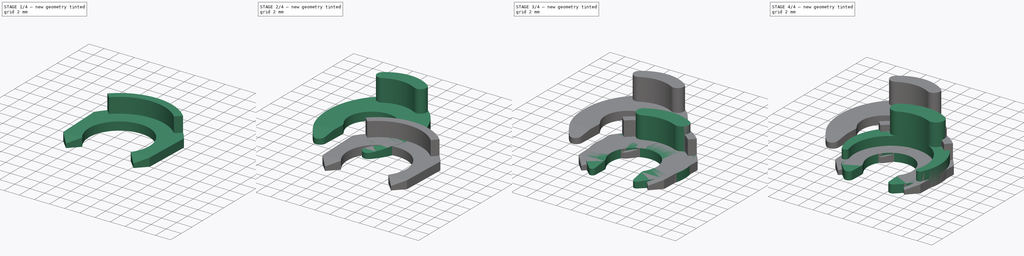
[diagram: build sequence overview — one tinted view per stage of 4, left to right]
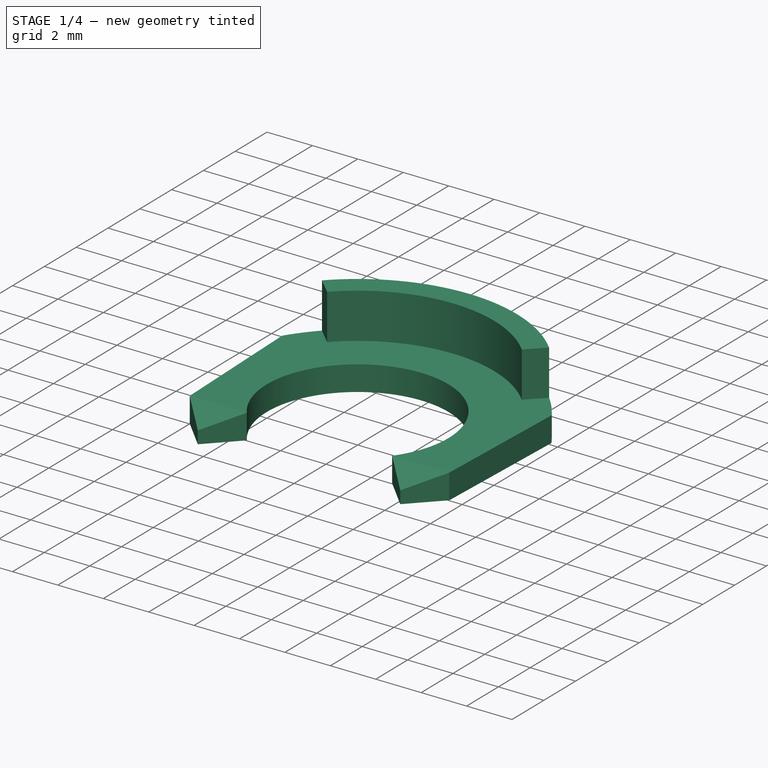
[diagram: stage 1 of 4 — iso view after this stage's code; geometry added in this stage tinted green]
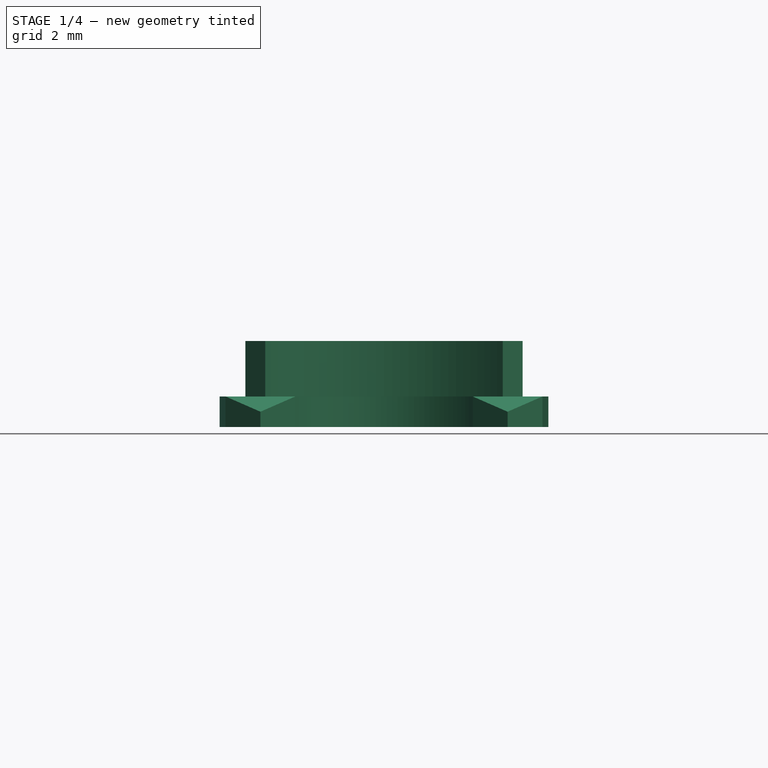
[diagram: stage 1 of 4 — front view after this stage's code; geometry added in this stage tinted green]
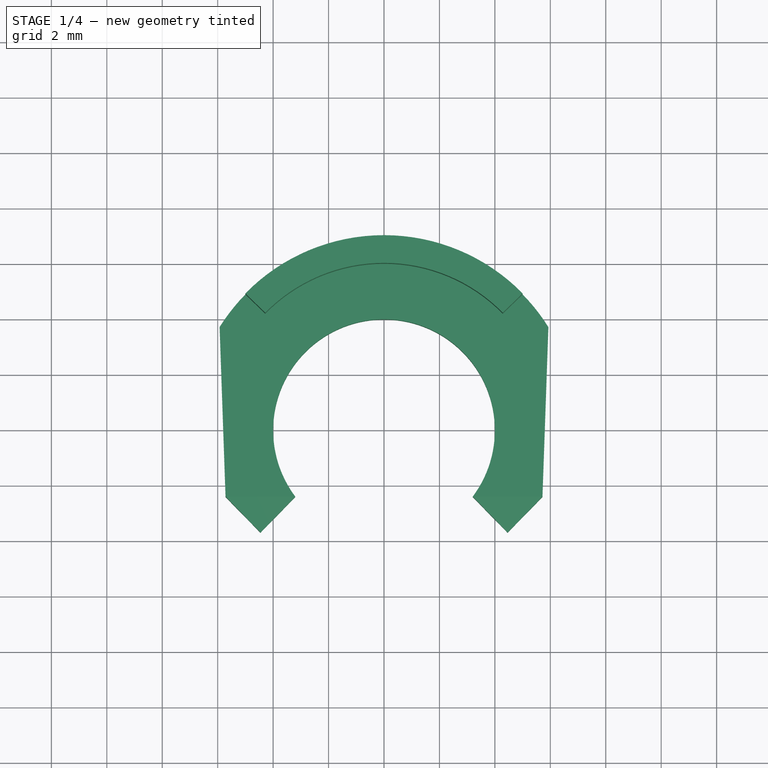
[diagram: stage 1 of 4 — top view after this stage's code; geometry added in this stage tinted green]
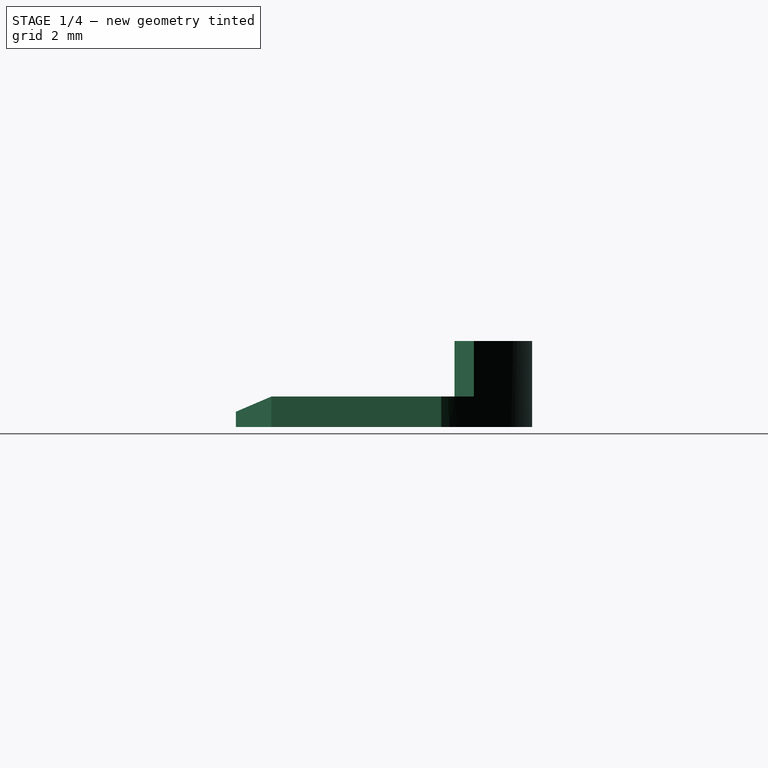
[diagram: stage 1 of 4 — right view after this stage's code; geometry added in this stage tinted green]
FCSTD DOCUMENT  (FreeCAD 0.20R29410 (Git))
Label: BowdenClip
License: All rights reserved
LicenseURL: http://en.wikipedia.org/wiki/All_rights_reserved
objects: Sketcher::SketchObject×16, PartDesign::Pad×9, PartDesign::Body×4, PartDesign::Pocket×3
note: 44 computed .brp shape members not serialized (recipe doc carries the construction recipe); baked Part::Feature solids carry a one-line shape summary decoded from their .brp

FEATURE [PartDesign::Body] Body002
  Group = -> [Sketch008,Sketch009,Pad005,Sketch010,Pad006,Sketch011,Pocket001]
  Origin = -> Origin002
  Tip = -> Pocket001
FEATURE [Sketcher::SketchObject] Sketch012
  FullyConstrained = true
  MapMode = 5
  Support = -> [XY_Plane003]
  expr: Constraints[15] = .Constraints.R + 3mm
  expr: Constraints[53] = .Constraints.R * 0.6
  sketch-geometry (20):
    g0: ArcOfCircle CenterX=2.74e-14 CenterY=-1.53e-14 CenterZ=0 NormalX=0 NormalY=0 NormalZ=1 AngleXU=0 Radius=4 StartAngle=5.63968 EndAngle=10.0683
    g1: LineSegment StartX=-3.2 StartY=-2.4 StartZ=0 EndX=2.75e-14 EndY=-1.55e-14 EndZ=0
    g2: LineSegment StartX=2.74e-14 StartY=-1.53e-14 StartZ=0 EndX=3.2 EndY=-2.4 EndZ=0
    g3: LineSegment StartX=2.74e-14 StartY=-1.53e-14 StartZ=0 EndX=2.74e-14 EndY=4 EndZ=0
    g4: LineSegment StartX=3.2 StartY=-2.4 StartZ=0 EndX=4.4581 EndY=-3.68732 EndZ=0
    g5: LineSegment StartX=-3.2 StartY=-2.4 StartZ=0 EndX=-4.4581 EndY=-3.68732 EndZ=0
    g6: LineSegment StartX=4.4581 StartY=-3.68732 StartZ=0 EndX=5.71619 EndY=-2.4 EndZ=0
    g7: LineSegment StartX=-4.4581 StartY=-3.68732 StartZ=0 EndX=-5.71619 EndY=-2.4 EndZ=0
    g8: ArcOfCircle CenterX=2.74e-14 CenterY=-1.53e-14 CenterZ=0 NormalX=0 NormalY=0 NormalZ=1 AngleXU=0 Radius=7 StartAngle=0.560239 EndAngle=2.58135
    g9: LineSegment StartX=-5.9299 StartY=3.71972 StartZ=0 EndX=-5.71619 EndY=-2.4 EndZ=0
    g10: LineSegment StartX=5.9299 StartY=3.71972 StartZ=0 EndX=5.71619 EndY=-2.4 EndZ=0
    g11: LineSegment StartX=-3.2 StartY=-2.4 StartZ=0 EndX=3.2 EndY=-2.4 EndZ=0
    g12: ArcOfCircle CenterX=2.74e-14 CenterY=-1.53e-14 CenterZ=0 NormalX=0 NormalY=0 NormalZ=1 AngleXU=0 Radius=6 StartAngle=0.775193 EndAngle=2.3664
    g13: LineSegment StartX=-4.28571 StartY=4.19913 StartZ=0 EndX=-5 EndY=4.89898 EndZ=0
    g14: LineSegment StartX=4.28571 StartY=4.19913 StartZ=0 EndX=5 EndY=4.89898 EndZ=0
    g15: LineSegment StartX=-4.28571 StartY=4.19913 StartZ=0 EndX=4.28571 EndY=4.19913 EndZ=0
    g16: LineSegment StartX=-4 StartY=-1.7e-14 StartZ=0 EndX=-5.8 EndY=-1.7e-14 EndZ=0
    g17: LineSegment StartX=-5.9299 StartY=3.71972 StartZ=0 EndX=5.9299 EndY=3.71972 EndZ=0
    g18: LineSegment StartX=-4.4581 StartY=-3.68732 StartZ=0 EndX=4.4581 EndY=-3.68732 EndZ=0
    g19: GeomPoint X=2.74e-14 Y=7 Z=0
  constraints (55):
    c: Radius(g0) = 4  'R'
    c: Coincident(g1,g0)
    c: Coincident(g1,g0)
    c: Coincident(g2,g0)
    c: Coincident(g2,g0)
    c: Coincident(g3,g0)
    c: PointOnObject(g3,g0)
    c: Vertical(g3)
    c: Coincident(g4,g0)
    c: Coincident(g5,g0)
    c: Coincident(g6,g4)
    c: Coincident(g7,g5)
    c: Equal(g5,g4)
    c: Distance(g5) = 1.8
    c: Coincident(g8,g0)
    c: Radius(g8) = 7
    c: Coincident(g9,g8)
    c: Coincident(g9,g7)
    c: Coincident(g10,g8)
    c: Coincident(g10,g6)
    c: Coincident(g11,g0)
    c: Coincident(g11,g0)
    c: Horizontal(g11)
    c: Coincident(g12,g0)
    c: Coincident(g13,g12)
    c: PointOnObject(g13,g8)
    c: Coincident(g14,g12)
    c: PointOnObject(g14,g8)
    c: PointOnObject(g0,g14)
    c: PointOnObject(g0,g13)
    c: Distance(g13) = 1
    c: Coincident(g15,g12)
    c: Coincident(g15,g12)
    c: Horizontal(g15)
    c: DistanceX(g13,g14) = 10
    c: PointOnObject(g16,g0)
    c: PointOnObject(g16,g9)
    c: Horizontal(g16)
    c: PointOnObject(g0,g16)
    c: Coincident(g0,g-1)
    c: Angle(g10,g9) = 0.0698132
    c: Coincident(g17,g8)
    c: Coincident(g17,g8)
    c: Horizontal(g17)
    c: Coincident(g18,g5)
    c: Coincident(g18,g4)
    c: Horizontal(g18)
    c: PointOnObject(g7,g11)
    c: PointOnObject(g6,g11)
    c: Equal(g10,g9)
    c: PointOnObject(g19,g8)
    c: PointOnObject(g19,g3)
    c: Equal(g16,g5)
    c: DistanceY(g0,g0) = 2.4
    c: Equal(g7,g5)
FEATURE [Sketcher::SketchObject] Sketch013
  ExternalGeometry = -> [Sketch012]
  FullyConstrained = true
  MapMode = 5
  Support = -> [XY_Plane003]
  sketch-geometry (8):
    g0: ArcOfCircle CenterX=9.2e-15 CenterY=9.99464e-11 CenterZ=0 NormalX=0 NormalY=0 NormalZ=1 AngleXU=0 Radius=7 StartAngle=0.560239 EndAngle=2.58135
    g1: ArcOfCircle CenterX=2.76e-14 CenterY=9.13716e-11 CenterZ=0 NormalX=0 NormalY=0 NormalZ=1 AngleXU=0 Radius=4 StartAngle=5.63968 EndAngle=10.0683
    g2: LineSegment StartX=-5.9299 StartY=3.71972 StartZ=0 EndX=-5.71619 EndY=-2.4 EndZ=0
    g3: LineSegment StartX=-5.71619 StartY=-2.4 StartZ=0 EndX=-4.4581 EndY=-3.68732 EndZ=0
    g4: LineSegment StartX=-4.4581 StartY=-3.68732 StartZ=0 EndX=-3.2 EndY=-2.4 EndZ=0
    g5: LineSegment StartX=3.2 StartY=-2.4 StartZ=0 EndX=4.4581 EndY=-3.68732 EndZ=0
    g6: LineSegment StartX=4.4581 StartY=-3.68732 StartZ=0 EndX=5.71619 EndY=-2.4 EndZ=0
    g7: LineSegment StartX=5.71619 StartY=-2.4 StartZ=0 EndX=5.9299 EndY=3.71972 EndZ=0
  constraints (18):
    c: Coincident(g0,g-3)
    c: Coincident(g0,g-3)
    c: Coincident(g1,g-4)
    c: Coincident(g1,g-4)
    c: Equal(g-4,g1)
    c: Equal(g-3,g0)
    c: Coincident(g2,g0)
    c: Coincident(g2,g-5)
    c: Coincident(g3,g2)
    c: Coincident(g3,g-5)
    c: Coincident(g4,g3)
    c: Coincident(g4,g1)
    c: Coincident(g5,g1)
    c: Coincident(g5,g-6)
    c: Coincident(g6,g5)
    c: Coincident(g6,g-6)
    c: Coincident(g7,g6)
    c: Coincident(g7,g0)
FEATURE [PartDesign::Pad] Pad007
  Direction = (0,0,1)
  Length = 1.1
  Length2 = 10
  Profile = -> Sketch013
  ReferenceAxis = -> Sketch013 [N_Axis]
  Type = 0
FEATURE [Sketcher::SketchObject] Sketch014
  AttachmentOffset = pos=(0,0,1.1) rot=(0,0,1;0rad)
  ExternalGeometry = -> [Sketch012]
  FullyConstrained = true
  MapMode = 5
  Placement = pos=(0,0,1.1) rot=(0,0,1;0rad)
  Support = -> [XY_Plane003]
  expr: .AttachmentOffset.Base.z = <<Sketch013>>.AttachmentOffset.Base.z + <<Pad007>>.Length
  sketch-geometry (4):
    g0: ArcOfCircle CenterX=7.4955e-12 CenterY=2.04442e-11 CenterZ=0 NormalX=0 NormalY=0 NormalZ=1 AngleXU=0 Radius=7 StartAngle=0.775193 EndAngle=2.3664
    g1: ArcOfCircle CenterX=-3.373e-12 CenterY=-9.9558e-12 CenterZ=0 NormalX=0 NormalY=0 NormalZ=1 AngleXU=0 Radius=6 StartAngle=0.775193 EndAngle=2.3664
    g2: LineSegment StartX=-5 StartY=4.89898 StartZ=0 EndX=-4.28571 EndY=4.19913 EndZ=0
    g3: LineSegment StartX=4.28571 StartY=4.19913 StartZ=0 EndX=5 EndY=4.89898 EndZ=0
  constraints (10):
    c: Coincident(g0,g-5)
    c: Coincident(g0,g-6)
    c: Coincident(g1,g-5)
    c: Coincident(g1,g-6)
    c: Equal(g-4,g1)
    c: Equal(g-3,g0)
    c: Coincident(g2,g0)
    c: Coincident(g2,g1)
    c: Coincident(g3,g1)
    c: Coincident(g3,g0)
FEATURE [PartDesign::Pad] Pad008
  BaseFeature = -> Pad007
  Direction = (0,0,1)
  Length = 2
  Length2 = 10
  Profile = -> Sketch014
  ReferenceAxis = -> Sketch014 [N_Axis]
  Refine = true
  Type = 0
FEATURE [Sketcher::SketchObject] Sketch015
  ExternalGeometry = -> [Sketch012]
  FullyConstrained = true
  MapMode = 5
  Placement = pos=(0,0,0) rot=(0.57735,0.57735,0.57735;2.0944rad)
  Support = -> [YZ_Plane003]
  expr: Constraints[4] = <<Pad007>>.Length
  sketch-geometry (5):
    g0: LineSegment StartX=-2.4 StartY=2e-16 StartZ=0 EndX=-2.4 EndY=1.1 EndZ=0
    g1: LineSegment StartX=-3.68732 StartY=2e-16 StartZ=0 EndX=-3.68732 EndY=0.55 EndZ=0
    g2: LineSegment StartX=-2.4 StartY=1.1 StartZ=0 EndX=-3.68732 EndY=1.1 EndZ=0
    g3: LineSegment StartX=-3.68732 StartY=1.1 StartZ=0 EndX=-3.68732 EndY=0.55 EndZ=0
    g4: LineSegment StartX=-3.68732 StartY=0.55 StartZ=0 EndX=-2.4 EndY=1.1 EndZ=0
  constraints (13):
    c: Coincident(g0,g-3)
    c: Vertical(g0)
    c: Coincident(g1,g-3)
    c: Vertical(g1)
    c: DistanceY(g0,g0) = 1.1
    c: Coincident(g2,g0)
    c: Horizontal(g2)
    c: Coincident(g3,g2)
    c: Coincident(g3,g1)
    c: Vertical(g3)
    c: Coincident(g4,g3)
    c: Coincident(g4,g2)
    c: Equal(g3,g1)
FEATURE [PartDesign::Pocket] Pocket002
  BaseFeature = -> Pad008
  Direction = (-1,2e-16,-3e-16)
  Length = 5
  Length2 = 5
  Midplane = true
  Profile = -> Sketch015
  ReferenceAxis = -> Sketch015 [N_Axis]
  Type = 1
FEATURE [PartDesign::Body] Body003
  Group = -> [Sketch012,Sketch013,Pad007,Sketch014,Pad008,Sketch015,Pocket002]
  Origin = -> Origin003
  Tip = -> Pocket002
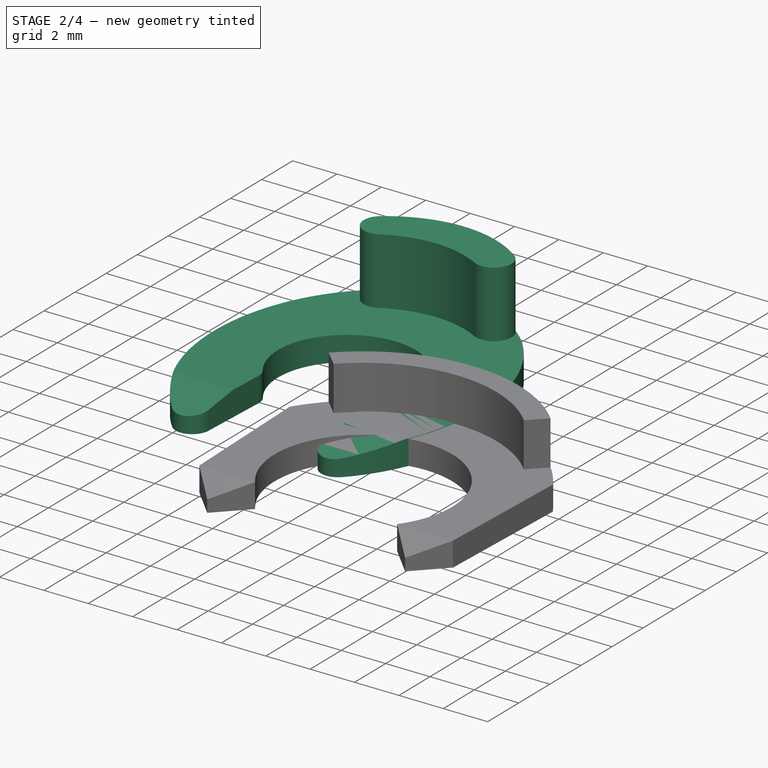
[diagram: stage 2 of 4 — iso view after this stage's code; geometry added in this stage tinted green]
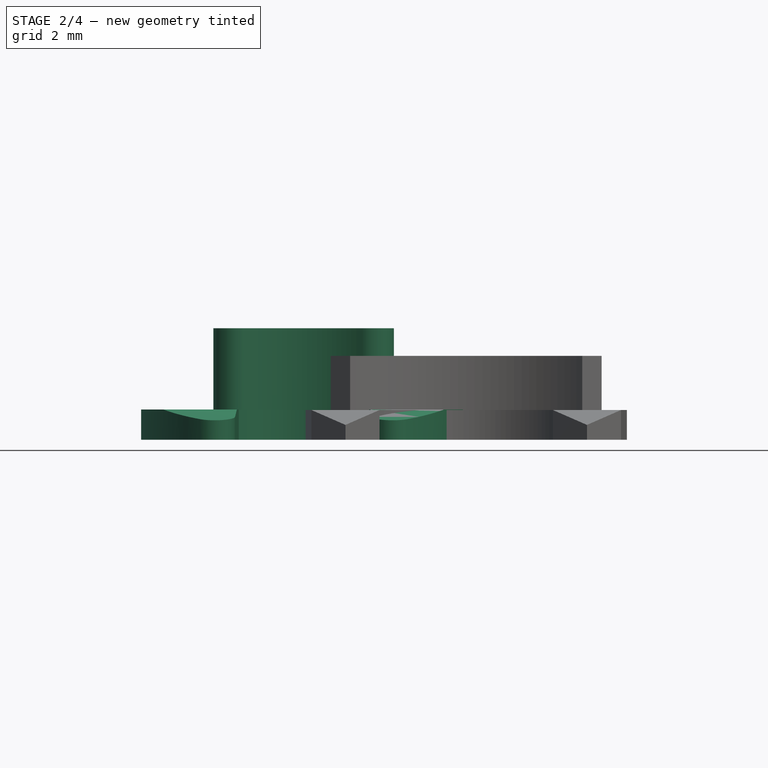
[diagram: stage 2 of 4 — front view after this stage's code; geometry added in this stage tinted green]
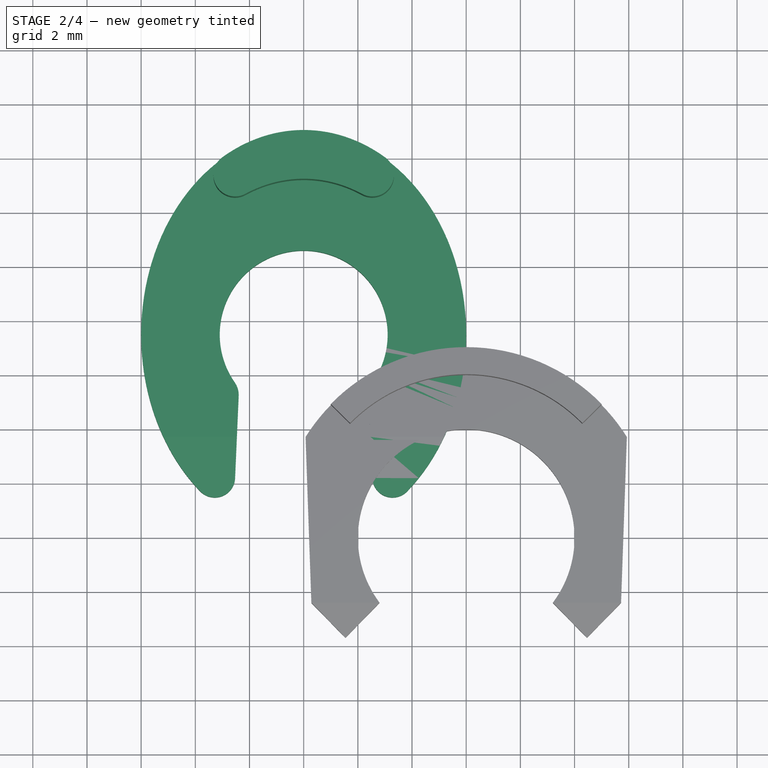
[diagram: stage 2 of 4 — top view after this stage's code; geometry added in this stage tinted green]
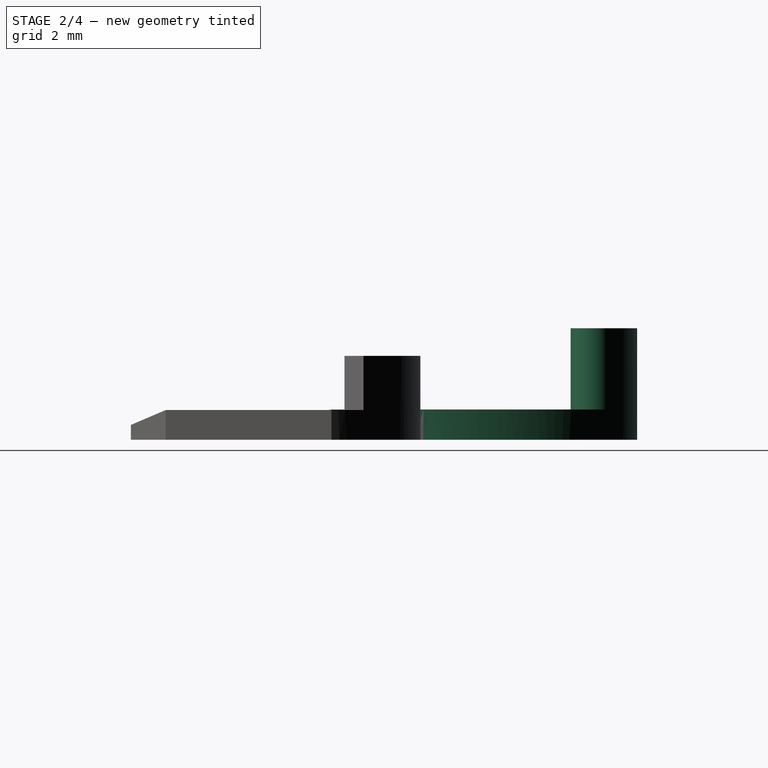
[diagram: stage 2 of 4 — right view after this stage's code; geometry added in this stage tinted green]
FEATURE [PartDesign::Body] Body001
  Group = -> [Sketch004,Pad003,Sketch005,Sketch006,Pad004,Sketch007,Pocket]
  Origin = -> Origin001
  Tip = -> Pocket
FEATURE [Sketcher::SketchObject] Sketch008  label="Template002"
  FullyConstrained = true
  MapMode = 5
  Support = -> [XY_Plane002]
  sketch-geometry (18):
    g0: ArcOfCircle CenterX=-6 CenterY=7.5 CenterZ=0 NormalX=0 NormalY=0 NormalZ=1 AngleXU=0 Radius=3.1 StartAngle=5.67436 EndAngle=10.0336
    g1: ArcOfCircle CenterX=-9.19924 CenterY=5.26956 CenterZ=0 NormalX=0 NormalY=0 NormalZ=1 AngleXU=0 Radius=0.8 StartAngle=6.23955 EndAngle=6.89202
    g2: ArcOfCircle CenterX=-2.80076 CenterY=5.26956 CenterZ=0 NormalX=0 NormalY=0 NormalZ=1 AngleXU=0 Radius=0.8 StartAngle=2.53276 EndAngle=3.18523
    g3: LineSegment StartX=-6 StartY=7.5 StartZ=0 EndX=-6 EndY=10.6 EndZ=0
    g4: LineSegment StartX=-8.4 StartY=5.23466 StartZ=0 EndX=-8.53224 EndY=2.2058 EndZ=0
    g5: LineSegment StartX=-3.6 StartY=5.23466 StartZ=0 EndX=-3.46776 EndY=2.2058 EndZ=0
    g6: Ellipse CenterX=-6 CenterY=7.5 CenterZ=0 NormalX=0 NormalY=0 NormalZ=1 MajorRadius=7.5 MinorRadius=6 AngleXU=-1.5708
    g7: LineSegment StartX=-6 StartY=2.7e-15 StartZ=0 EndX=-6 EndY=15 EndZ=0
    g8: LineSegment StartX=1e-15 StartY=7.5 StartZ=0 EndX=-12 EndY=7.5 EndZ=0
    g9: GeomPoint X=-6 Y=3 Z=0
    g10: GeomPoint X=-6 Y=12 Z=0
    g11: ArcOfEllipse CenterX=-6 CenterY=7.5 CenterZ=0 NormalX=0 NormalY=0 NormalZ=1 MajorRadius=7.5 MinorRadius=6 AngleXU=1.5708 StartAngle=3.8318 EndAngle=8.73457
    g12: LineSegment StartX=-6 StartY=15 StartZ=0 EndX=-6 EndY=7.1e-15 EndZ=0
    g13: LineSegment StartX=-12 StartY=7.5 StartZ=0 EndX=-7.1e-15 EndY=7.5 EndZ=0
    g14: GeomPoint X=-6 Y=12 Z=0
    g15: GeomPoint X=-6 Y=3 Z=0
    g16: ArcOfCircle CenterX=-9.28153 CenterY=2.23852 CenterZ=0 NormalX=0 NormalY=0 NormalZ=1 AngleXU=0 Radius=0.75 StartAngle=3.9112 EndAngle=6.23955
    g17: ArcOfCircle CenterX=-2.71847 CenterY=2.23852 CenterZ=0 NormalX=0 NormalY=0 NormalZ=1 AngleXU=0 Radius=0.75 StartAngle=3.18523 EndAngle=5.51358
  constraints (30):
    c: Tangent(g0,g1) = 1.5708
    c: Tangent(g0,g2) = 1.5708
    c: Coincident(g3,g0)
    c: PointOnObject(g3,g0)
    c: Vertical(g3)
    c: Symmetric(g1,g2,g3)
    c: Tangent(g1,g4) = 1.5708
    c: Tangent(g2,g5) = -1.5708
    c: Equal(g4,g5)
    c: Angle(g4,g5) = 0.0872665
    c: Radius(g1) = 0.8
    c: Radius(g0) = 3.1  'R'
    c: InternalAlignment(g7-g10 -> g6) x4
    c: Vertical(g7)
    c: DistanceX(g8,g8) = 12
    c: DistanceY(g7,g7) = 15
    c: InternalAlignment(g12-g15 -> g11) x4
    c: Coincident(g11,g6)
    c: Symmetric(g11,g11,g7)
    c: Coincident(g11,g0)
    c: Tangent(g4,g16) = 1.5708
    c: Tangent(g11,g16) = -1.5708
    c: Tangent(g11,g17) = -1.5708
    c: Tangent(g5,g17) = -1.5708
    c: Radius(g16) = 0.75
    c: PointOnObject(g13,g6)
    c: PointOnObject(g12,g6)
    c: Tangent(g6,g-1)
    c: Tangent(g6,g-2)
    c: DistanceX(g1,g2) = 4.8
FEATURE [Sketcher::SketchObject] Sketch009
  ExternalGeometry = -> [Sketch008]
  FullyConstrained = true
  MapMode = 5
  Support = -> [XY_Plane002]
  sketch-geometry (13):
    g0: ArcOfEllipse CenterX=-6 CenterY=7.5 CenterZ=0 NormalX=0 NormalY=0 NormalZ=1 MajorRadius=7.5 MinorRadius=6 AngleXU=1.5708 StartAngle=3.8318 EndAngle=8.73457
    g1: LineSegment StartX=-6 StartY=15 StartZ=0 EndX=-6 EndY=2.0677e-12 EndZ=0
    g2: LineSegment StartX=-12 StartY=7.5 StartZ=0 EndX=1.2719e-12 EndY=7.5 EndZ=0
    g3: GeomPoint X=-6 Y=12 Z=0
    g4: GeomPoint X=-6 Y=3 Z=0
    g5: GeomPoint X=-0.850205 Y=3.65138 Z=0
    g6: ArcOfCircle CenterX=-9.28153 CenterY=2.23852 CenterZ=0 NormalX=0 NormalY=0 NormalZ=1 AngleXU=0 Radius=0.75 StartAngle=3.9112 EndAngle=6.23955
    g7: ArcOfCircle CenterX=-2.71847 CenterY=2.23852 CenterZ=0 NormalX=0 NormalY=0 NormalZ=1 AngleXU=0 Radius=0.75 StartAngle=3.18523 EndAngle=5.51358
    g8: ArcOfCircle CenterX=-9.19924 CenterY=5.26956 CenterZ=0 NormalX=0 NormalY=0 NormalZ=1 AngleXU=0 Radius=0.8 StartAngle=6.23955 EndAngle=6.89202
    g9: ArcOfCircle CenterX=-2.80076 CenterY=5.26956 CenterZ=0 NormalX=0 NormalY=0 NormalZ=1 AngleXU=0 Radius=0.8 StartAngle=2.53276 EndAngle=3.18523
    g10: ArcOfCircle CenterX=-6 CenterY=7.5 CenterZ=0 NormalX=0 NormalY=0 NormalZ=1 AngleXU=0 Radius=3.1 StartAngle=5.67436 EndAngle=10.0336
    g11: LineSegment StartX=-8.53224 StartY=2.2058 StartZ=0 EndX=-8.4 EndY=5.23466 EndZ=0
    g12: LineSegment StartX=-3.6 StartY=5.23466 StartZ=0 EndX=-3.46776 EndY=2.2058 EndZ=0
  constraints (26):
    c: InternalAlignment(g1-g4 -> g0) x4
    c: Coincident(g0,g-6)
    c: PointOnObject(g5,g-3)
    c: PointOnObject(g5,g0)
    c: Tangent(g-3,g0,g5) = -1.5708
    c: Coincident(g0,g-4)
    c: Coincident(g0,g-5)
    c: Coincident(g6,g0)
    c: Coincident(g6,g-4)
    c: Coincident(g7,g-5)
    c: Coincident(g7,g0)
    c: Coincident(g8,g-7)
    c: Coincident(g8,g-7)
    c: Coincident(g9,g-8)
    c: Coincident(g9,g-8)
    c: Coincident(g10,g8)
    c: Coincident(g10,g9)
    c: Equal(g-6,g10)
    c: Equal(g-7,g8)
    c: Equal(g-8,g9)
    c: Equal(g-5,g7)
    c: Equal(g-4,g6)
    c: Coincident(g11,g6)
    c: Coincident(g11,g8)
    c: Coincident(g12,g9)
    c: Coincident(g12,g7)
FEATURE [Sketcher::SketchObject] Sketch010
  AttachmentOffset = pos=(0,0,1.12) rot=(0,0,1;0rad)
  ExternalGeometry = -> [Sketch008]
  FullyConstrained = true
  MapMode = 5
  Placement = pos=(0,0,1.12) rot=(0,0,1;0rad)
  Support = -> [XY_Plane002]
  expr: .AttachmentOffset.Base.z = <<Sketch009>>.AttachmentOffset.Base.z + <<Pad005>>.Length
  sketch-geometry (13):
    g0: ArcOfEllipse CenterX=-6 CenterY=7.5 CenterZ=0 NormalX=0 NormalY=0 NormalZ=1 MajorRadius=7.5 MinorRadius=6 AngleXU=1.5708 StartAngle=5.75959 EndAngle=6.80678
    g1: LineSegment StartX=-6 StartY=15 StartZ=0 EndX=-6 EndY=-1.403e-13 EndZ=0
    g2: LineSegment StartX=-12 StartY=7.5 StartZ=0 EndX=1.45093e-11 EndY=7.5 EndZ=0
    g3: GeomPoint X=-6 Y=12 Z=0
    g4: GeomPoint X=-6 Y=3 Z=0
    g5: LineSegment StartX=-9 StartY=13.9952 StartZ=0 EndX=-3 EndY=13.9952 EndZ=0
    g6: ArcOfEllipse CenterX=-6 CenterY=7.5 CenterZ=0 NormalX=0 NormalY=0 NormalZ=1 MajorRadius=5.7 MinorRadius=4.98874 AngleXU=1.5708 StartAngle=5.83788 EndAngle=6.72849
    g7: LineSegment StartX=-6 StartY=13.2 StartZ=0 EndX=-6 EndY=1.8 EndZ=0
    g8: LineSegment StartX=-10.9887 StartY=7.5 StartZ=0 EndX=-1.01126 EndY=7.5 EndZ=0
    g9: GeomPoint X=-6 Y=10.2573 Z=0
    g10: GeomPoint X=-6 Y=4.74274 Z=0
    g11: ArcOfCircle CenterX=-8.53184 CenterY=13.3465 CenterZ=0 NormalX=0 NormalY=0 NormalZ=1 AngleXU=0 Radius=0.8 StartAngle=2.19593 EndAngle=5.21164
    g12: ArcOfCircle CenterX=-3.46816 CenterY=13.3465 CenterZ=0 NormalX=0 NormalY=0 NormalZ=1 AngleXU=0 Radius=0.8 StartAngle=4.21314 EndAngle=7.22885
  constraints (18):
    c: InternalAlignment(g1-g4 -> g0) x4
    c: Coincident(g0,g-3)
    c: PointOnObject(g0,g-3)
    c: Coincident(g5,g0)
    c: Coincident(g5,g0)
    c: Horizontal(g5)
    c: InternalAlignment(g7-g10 -> g6) x4
    c: Coincident(g6,g0)
    c: Tangent(g6,g12) = 1.5708
    c: Tangent(g6,g11) = 1.5708
    c: Tangent(g11,g0) = -1.5708
    c: Tangent(g12,g0) = -1.5708
    c: Equal(g12,g11)
    c: Radius(g11) = 0.8
    c: Vertical(g1)
    c: PointOnObject(g1,g-3)
    c: DistanceY(g7,g1) = 1.8
    c: DistanceX(g0,g0) = 6
FEATURE [PartDesign::Pad] Pad005
  Direction = (0,0,1)
  Length = 1.12
  Length2 = 10
  Profile = -> Sketch009
  ReferenceAxis = -> Sketch009 [N_Axis]
  Type = 0
FEATURE [PartDesign::Pad] Pad006
  BaseFeature = -> Pad005
  Direction = (0,0,1)
  Length = 3
  Length2 = 10
  Profile = -> Sketch010
  ReferenceAxis = -> Sketch010 [N_Axis]
  Refine = true
  Type = 0
FEATURE [Sketcher::SketchObject] Sketch011
  ExternalGeometry = -> [Sketch008]
  FullyConstrained = true
  MapMode = 5
  Placement = pos=(0,0,0) rot=(0.57735,0.57735,0.57735;2.0944rad)
  Support = -> [YZ_Plane002]
  expr: Constraints[4] = <<Pad005>>.Length
  sketch-geometry (5):
    g0: LineSegment StartX=3.72023 StartY=3.4e-15 StartZ=0 EndX=3.72023 EndY=1.12 EndZ=0
    g1: LineSegment StartX=1.48852 StartY=-9.71e-14 StartZ=0 EndX=1.48852 EndY=0.72 EndZ=0
    g2: LineSegment StartX=3.72023 StartY=1.12 StartZ=0 EndX=1.48852 EndY=1.12 EndZ=0
    g3: LineSegment StartX=1.48852 StartY=1.12 StartZ=0 EndX=1.48852 EndY=0.72 EndZ=0
    g4: LineSegment StartX=1.48852 StartY=0.72 StartZ=0 EndX=3.72023 EndY=1.12 EndZ=0
  constraints (13):
    c: Vertical(g0)
    c: Coincident(g1,g-3)
    c: Vertical(g1)
    c: Symmetric(g-4,g-4,g0)
    c: DistanceY(g0,g0) = 1.12
    c: Coincident(g2,g0)
    c: Horizontal(g2)
    c: Coincident(g3,g2)
    c: Coincident(g3,g1)
    c: Vertical(g3)
    c: Coincident(g4,g3)
    c: Coincident(g4,g2)
    c: DistanceY(g3,g3) = 0.4
FEATURE [PartDesign::Pocket] Pocket001
  BaseFeature = -> Pad006
  Direction = (-1,2e-16,-3e-16)
  Length = 5
  Length2 = 5
  Midplane = true
  Profile = -> Sketch011
  ReferenceAxis = -> Sketch011 [N_Axis]
  Type = 1
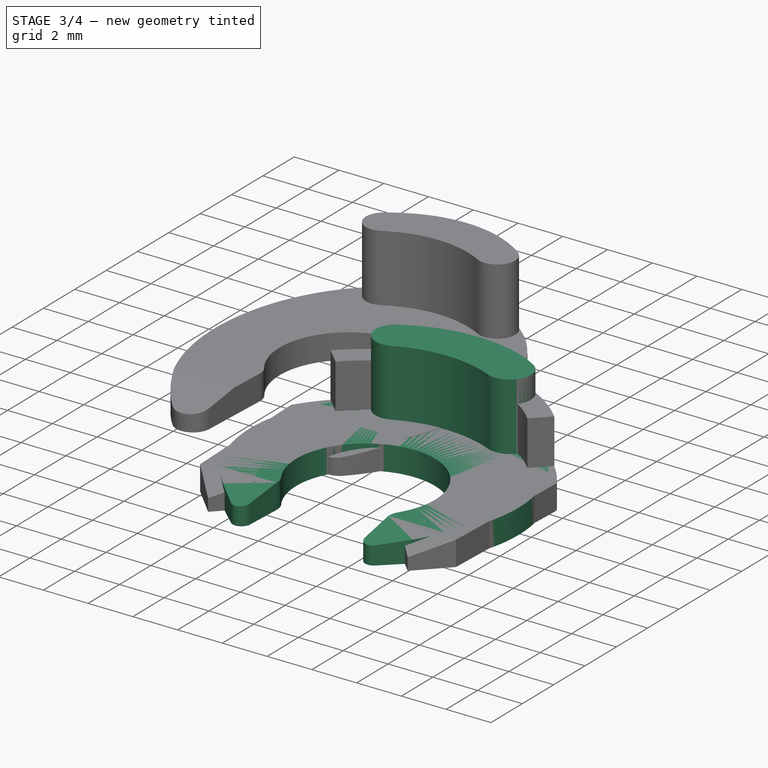
[diagram: stage 3 of 4 — iso view after this stage's code; geometry added in this stage tinted green]
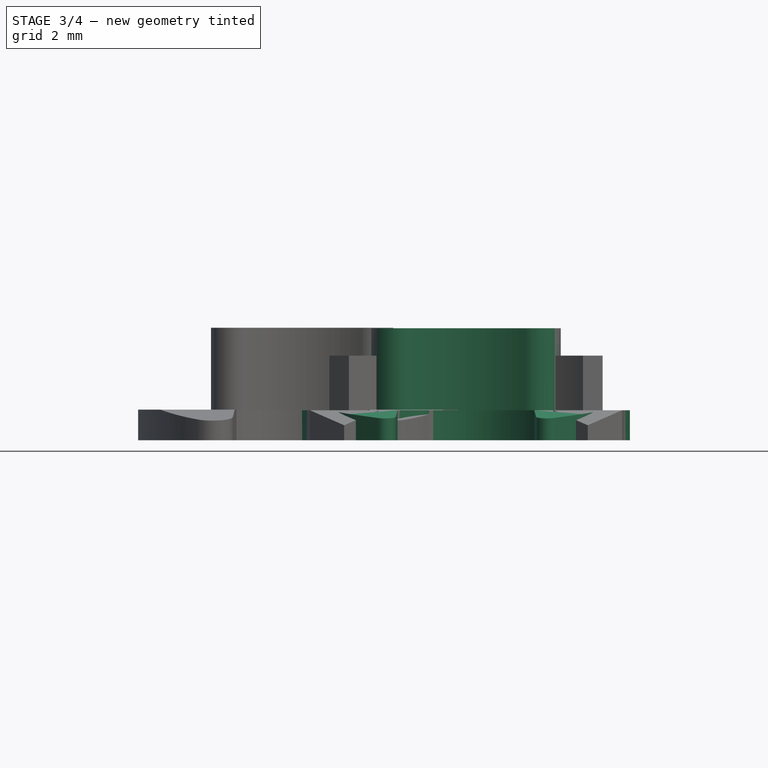
[diagram: stage 3 of 4 — front view after this stage's code; geometry added in this stage tinted green]
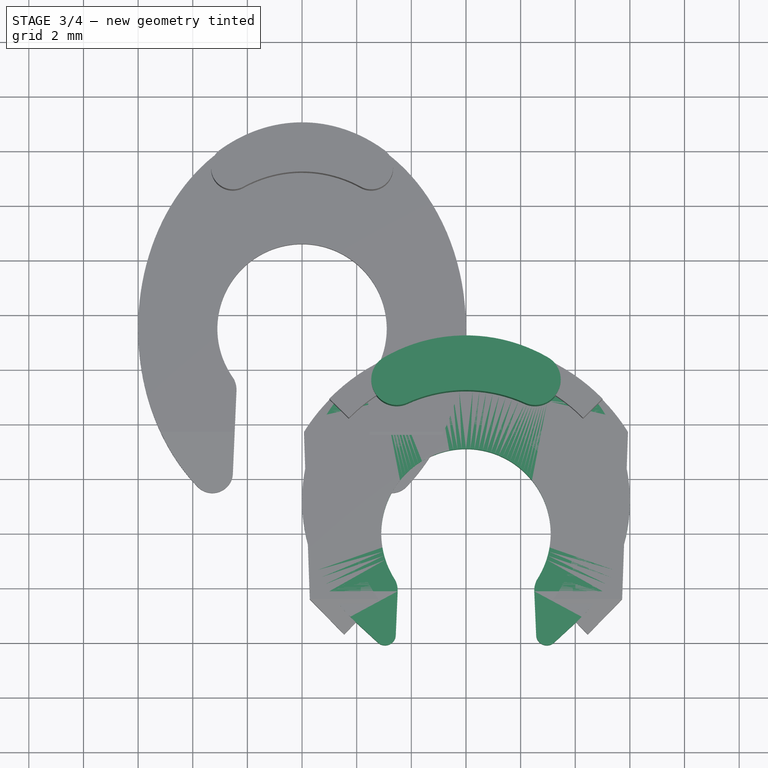
[diagram: stage 3 of 4 — top view after this stage's code; geometry added in this stage tinted green]
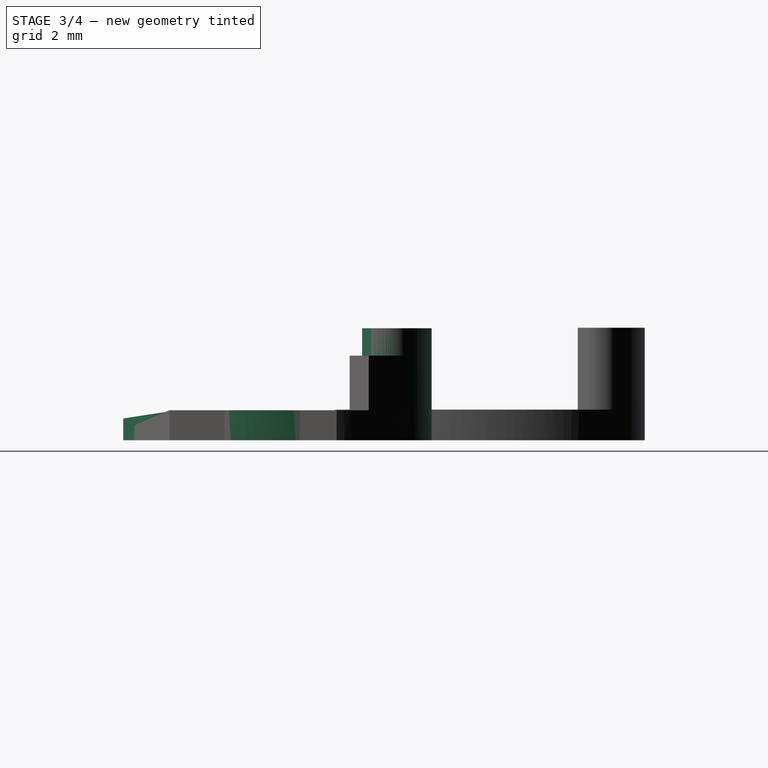
[diagram: stage 3 of 4 — right view after this stage's code; geometry added in this stage tinted green]
FEATURE [PartDesign::Body] Body
  Group = -> [Sketch,Sketch001,Pad,Sketch002,Pad001,Sketch003,Pad002]
  Origin = -> Origin
  Tip = -> Pad002
FEATURE [Sketcher::SketchObject] Sketch004  label="Template001"
  FullyConstrained = true
  MapMode = 5
  Support = -> [XY_Plane001]
  sketch-geometry (22):
    g0: ArcOfCircle CenterX=-2.638e-13 CenterY=-3.528e-12 CenterZ=0 NormalX=0 NormalY=0 NormalZ=1 AngleXU=0 Radius=3.1 StartAngle=5.72075 EndAngle=9.98721
    g1: ArcOfCircle CenterX=-3.29924 CenterY=-2.07967 CenterZ=0 NormalX=0 NormalY=0 NormalZ=1 AngleXU=0 Radius=0.8 StartAngle=6.23955 EndAngle=6.84562
    g2: ArcOfCircle CenterX=3.29924 CenterY=-2.07967 CenterZ=0 NormalX=0 NormalY=0 NormalZ=1 AngleXU=0 Radius=0.8 StartAngle=2.57916 EndAngle=3.18523
    g3: LineSegment StartX=-2.62247 StartY=-1.65307 StartZ=0 EndX=2.62247 EndY=-1.65307 EndZ=0
    g4: LineSegment StartX=-2.5 StartY=-2.11456 StartZ=0 EndX=-2.56986 EndY=-3.71456 EndZ=0
    g5: LineSegment StartX=2.5 StartY=-2.11456 StartZ=0 EndX=2.56986 EndY=-3.71456 EndZ=0
    g6: LineSegment StartX=-2.56986 StartY=-3.71456 StartZ=0 EndX=2.56986 EndY=-3.71456 EndZ=0
    g7: LineSegment StartX=-2.5 StartY=-2.11456 StartZ=0 EndX=2.5 EndY=-2.11456 EndZ=0
    g8: LineSegment StartX=-2.5 StartY=-2.11456 StartZ=0 EndX=-2.638e-13 EndY=-3.5278e-12 EndZ=0
    g9: LineSegment StartX=-2.638e-13 StartY=-3.528e-12 StartZ=0 EndX=2.5 EndY=-2.11456 EndZ=0
    g10: ArcOfCircle CenterX=-2.638e-13 CenterY=1.2 CenterZ=0 NormalX=0 NormalY=0 NormalZ=1 AngleXU=0 Radius=6 StartAngle=5.4564 EndAngle=10.2516
    g11: LineSegment StartX=-2.638e-13 StartY=-3.528e-12 StartZ=0 EndX=-2.638e-13 EndY=1.2 EndZ=0
    g12: LineSegment StartX=-4.06345 StartY=-3.21456 StartZ=0 EndX=-3.22594 EndY=-3.98546 EndZ=0
    g13: LineSegment StartX=4.06345 StartY=-3.21456 StartZ=0 EndX=3.22594 EndY=-3.98546 EndZ=0
    g14: LineSegment StartX=-4.06345 StartY=-3.21456 StartZ=0 EndX=4.06345 EndY=-3.21456 EndZ=0
    g15: ArcOfCircle CenterX=-2.96087 CenterY=-3.69749 CenterZ=0 NormalX=0 NormalY=0 NormalZ=1 AngleXU=0 Radius=0.39139 StartAngle=3.96838 EndAngle=6.23955
    g16: ArcOfCircle CenterX=2.96087 CenterY=-3.69749 CenterZ=0 NormalX=0 NormalY=0 NormalZ=1 AngleXU=0 Radius=0.39139 StartAngle=3.18523 EndAngle=5.4564
    g17: ArcOfCircle CenterX=-2.638e-13 CenterY=-3.528e-12 CenterZ=0 NormalX=0 NormalY=0 NormalZ=1 AngleXU=0 Radius=5.2 StartAngle=1.14516 EndAngle=1.99643
    g18: ArcOfCircle CenterX=-2.53284 CenterY=5.58701 CenterZ=0 NormalX=0 NormalY=0 NormalZ=1 AngleXU=0 Radius=0.934322 StartAngle=2.0944 EndAngle=5.13802
    g19: ArcOfCircle CenterX=2.53284 CenterY=5.58701 CenterZ=0 NormalX=0 NormalY=0 NormalZ=1 AngleXU=0 Radius=0.934322 StartAngle=4.28676 EndAngle=7.33038
    g20: LineSegment StartX=-2.14706 StartY=4.73605 StartZ=0 EndX=2.14706 EndY=4.73605 EndZ=0
    g21: LineSegment StartX=-2.653e-13 StartY=5.2 StartZ=0 EndX=-2.653e-13 EndY=7.2 EndZ=0
  constraints (54):
    c: Radius(g0) = 3.1  'R'
    c: Tangent(g1,g0) = 1.5708
    c: Tangent(g2,g0) = 1.5708
    c: Coincident(g3,g0)
    c: Coincident(g3,g0)
    c: Horizontal(g3)
    c: Equal(g1,g2)
    c: Tangent(g2,g5) = -1.5708
    c: Coincident(g6,g4)
    c: Coincident(g6,g5)
    c: Horizontal(g6)
    c: Coincident(g7,g1)
    c: Coincident(g7,g2)
    c: Horizontal(g7)
    c: Angle(g4,g5) = 0.0872665
    c: Coincident(g8,g1)
    c: Coincident(g8,g0)
    c: Coincident(g9,g0)
    c: Coincident(g9,g2)
    c: DistanceY(g4,g1) = 1.6
    c: DistanceX(g7,g7) = 5
    c: Radius(g10) = 6
    c: Coincident(g11,g0)
    c: Coincident(g11,g10)
    c: Vertical(g11)
    c: DistanceY(g11,g11) = 1.2
    c: Radius(g1) = 0.8
    c: Tangent(g10,g13) = 1.5708
    c: Tangent(g10,g12) = -1.5708
    c: Coincident(g14,g10)
    c: Coincident(g14,g10)
    c: Horizontal(g14)
    c: Equal(g13,g12)
    c: Tangent(g1,g4) = 1.5708
    c: DistanceY(g4,g10) = 0.5
    c: Tangent(g5,g16) = -1.5708
    c: Tangent(g16,g13) = 1.5708
    c: Tangent(g4,g15) = 1.5708
    c: Coincident(g15,g12)
    c: Coincident(g0,g-1)  '__ANCHOR__'
    c: Coincident(g0,g17)
    c: Tangent(g18,g10) = -1.5708
    c: Tangent(g19,g10) = -1.5708
    c: Coincident(g20,g18)
    c: Coincident(g20,g19)
    c: Horizontal(g20)
    c: DistanceX(g18,g19) = 6
    c: Tangent(g17,g18) = 1.5708
    c: Tangent(g17,g19) = 1.5708
    c: PointOnObject(g21,g17)
    c: PointOnObject(g21,g10)
    c: Vertical(g21)
    c: PointOnObject(g21,g11)
    c: DistanceY(g21,g21) = 2
FEATURE [Sketcher::SketchObject] Sketch005
  ExternalGeometry = -> [Sketch004]
  FullyConstrained = true
  MapMode = 5
  Support = -> [XY_Plane001]
  sketch-geometry (10):
    g0: ArcOfCircle CenterX=-2.96087 CenterY=-3.69749 CenterZ=0 NormalX=0 NormalY=0 NormalZ=1 AngleXU=0 Radius=0.39139 StartAngle=3.96838 EndAngle=6.23955
    g1: ArcOfCircle CenterX=2.96087 CenterY=-3.69749 CenterZ=0 NormalX=0 NormalY=0 NormalZ=1 AngleXU=0 Radius=0.39139 StartAngle=3.18523 EndAngle=5.4564
    g2: ArcOfCircle CenterX=-2.642e-13 CenterY=1.2 CenterZ=0 NormalX=0 NormalY=0 NormalZ=1 AngleXU=0 Radius=6 StartAngle=5.4564 EndAngle=10.2516
    g3: ArcOfCircle CenterX=-1.054e-12 CenterY=-2.58165e-11 CenterZ=0 NormalX=0 NormalY=0 NormalZ=1 AngleXU=0 Radius=3.1 StartAngle=5.72075 EndAngle=9.98721
    g4: ArcOfCircle CenterX=3.29924 CenterY=-2.07967 CenterZ=0 NormalX=0 NormalY=0 NormalZ=1 AngleXU=0 Radius=0.8 StartAngle=2.57916 EndAngle=3.18523
    g5: ArcOfCircle CenterX=-3.29924 CenterY=-2.07967 CenterZ=0 NormalX=0 NormalY=0 NormalZ=1 AngleXU=0 Radius=0.8 StartAngle=6.23955 EndAngle=6.84562
    g6: LineSegment StartX=-2.5 StartY=-2.11456 StartZ=0 EndX=-2.56986 EndY=-3.71456 EndZ=0
    g7: LineSegment StartX=-4.06345 StartY=-3.21456 StartZ=0 EndX=-3.22594 EndY=-3.98546 EndZ=0
    g8: LineSegment StartX=2.5 StartY=-2.11456 StartZ=0 EndX=2.56986 EndY=-3.71456 EndZ=0
    g9: LineSegment StartX=3.22594 StartY=-3.98546 StartZ=0 EndX=4.06345 EndY=-3.21456 EndZ=0
  constraints (26):
    c: Coincident(g0,g-7)
    c: Coincident(g0,g-7)
    c: Coincident(g1,g-6)
    c: Coincident(g1,g-6)
    c: Coincident(g2,g-8)
    c: Coincident(g2,g-8)
    c: Coincident(g3,g-4)
    c: Coincident(g3,g-5)
    c: Coincident(g4,g3)
    c: Coincident(g4,g-5)
    c: Coincident(g5,g3)
    c: Coincident(g5,g-4)
    c: Equal(g-4,g5)
    c: Equal(g-5,g4)
    c: Equal(g3,g-3)
    c: Equal(g1,g-6)
    c: Equal(g-7,g0)
    c: Equal(g2,g-8)
    c: Coincident(g6,g5)
    c: Coincident(g6,g0)
    c: Coincident(g7,g2)
    c: Coincident(g7,g0)
    c: Coincident(g8,g4)
    c: Coincident(g8,g1)
    c: Coincident(g9,g1)
    c: Coincident(g9,g2)
FEATURE [PartDesign::Pad] Pad003
  Direction = (0,0,1)
  Length = 1.1
  Length2 = 10
  Profile = -> Sketch005
  ReferenceAxis = -> Sketch005 [N_Axis]
  Type = 0
FEATURE [Sketcher::SketchObject] Sketch006
  AttachmentOffset = pos=(0,0,1.1) rot=(0,0,1;0rad)
  ExternalGeometry = -> [Sketch004]
  FullyConstrained = true
  MapMode = 5
  Placement = pos=(0,0,1.1) rot=(0,0,1;0rad)
  Support = -> [XY_Plane001]
  expr: .AttachmentOffset.Base.z = <<Sketch005>>.AttachmentOffset.Base.z + <<Pad003>>.Length
  sketch-geometry (4):
    g0: ArcOfCircle CenterX=-2.53284 CenterY=5.58701 CenterZ=0 NormalX=0 NormalY=0 NormalZ=1 AngleXU=0 Radius=0.934322 StartAngle=2.0944 EndAngle=5.13802
    g1: ArcOfCircle CenterX=2.53284 CenterY=5.58701 CenterZ=0 NormalX=0 NormalY=0 NormalZ=1 AngleXU=0 Radius=0.934322 StartAngle=4.28676 EndAngle=7.33038
    g2: ArcOfCircle CenterX=8.51e-14 CenterY=1.2 CenterZ=0 NormalX=0 NormalY=0 NormalZ=1 AngleXU=0 Radius=6 StartAngle=1.0472 EndAngle=2.0944
    g3: ArcOfCircle CenterX=-3.164e-13 CenterY=-2.70977e-11 CenterZ=0 NormalX=0 NormalY=0 NormalZ=1 AngleXU=0 Radius=5.2 StartAngle=1.14516 EndAngle=1.99643
  constraints (12):
    c: Coincident(g2,g0)
    c: Coincident(g1,g2)
    c: Coincident(g3,g0)
    c: Coincident(g3,g1)
    c: Coincident(g1,g-6)
    c: Coincident(g1,g-6)
    c: Coincident(g0,g-5)
    c: Coincident(g0,g-5)
    c: Equal(g3,g-3)
    c: Equal(g2,g-4)
    c: Equal(g1,g-6)
    c: Equal(g0,g-5)
FEATURE [PartDesign::Pad] Pad004
  BaseFeature = -> Pad003
  Direction = (0,0,1)
  Length = 3
  Length2 = 10
  Profile = -> Sketch006
  ReferenceAxis = -> Sketch006 [N_Axis]
  Type = 0
FEATURE [Sketcher::SketchObject] Sketch007
  ExternalGeometry = -> [Sketch004]
  FullyConstrained = true
  MapMode = 5
  Placement = pos=(0,0,0) rot=(0.57735,0.57735,0.57735;2.0944rad)
  Support = -> [YZ_Plane001]
  expr: Constraints[6] = <<Pad003>>.Length
  sketch-geometry (5):
    g0: LineSegment StartX=-2.11456 StartY=1.1 StartZ=0 EndX=-4.08888 EndY=1.1 EndZ=0
    g1: LineSegment StartX=-4.08888 StartY=1.1 StartZ=0 EndX=-4.08888 EndY=0.8 EndZ=0
    g2: LineSegment StartX=-4.08888 StartY=0.8 StartZ=0 EndX=-2.11456 EndY=1.1 EndZ=0
    g3: LineSegment StartX=-2.11456 StartY=1.1 StartZ=0 EndX=-2.11456 EndY=-6.133e-13 EndZ=0
    g4: LineSegment StartX=-4.08888 StartY=0.8 StartZ=0 EndX=-4.08888 EndY=-2e-15 EndZ=0
  constraints (13):
    c: Horizontal(g0)
    c: Coincident(g2,g1)
    c: Coincident(g2,g0)
    c: Coincident(g3,g0)
    c: Vertical(g3)
    c: DistanceY(g1,g1) = 0.3
    c: DistanceY(g3,g3) = 1.1
    c: Coincident(g0,g1)
    c: Vertical(g1)
    c: Coincident(g4,g1)
    c: Coincident(g4,g-3)
    c: Vertical(g4)
    c: Coincident(g3,g-4)
FEATURE [PartDesign::Pocket] Pocket
  BaseFeature = -> Pad004
  Direction = (-1,2e-16,-3e-16)
  Length = 5
  Length2 = 5
  Midplane = true
  Profile = -> Sketch007
  ReferenceAxis = -> Sketch007 [N_Axis]
  Type = 1
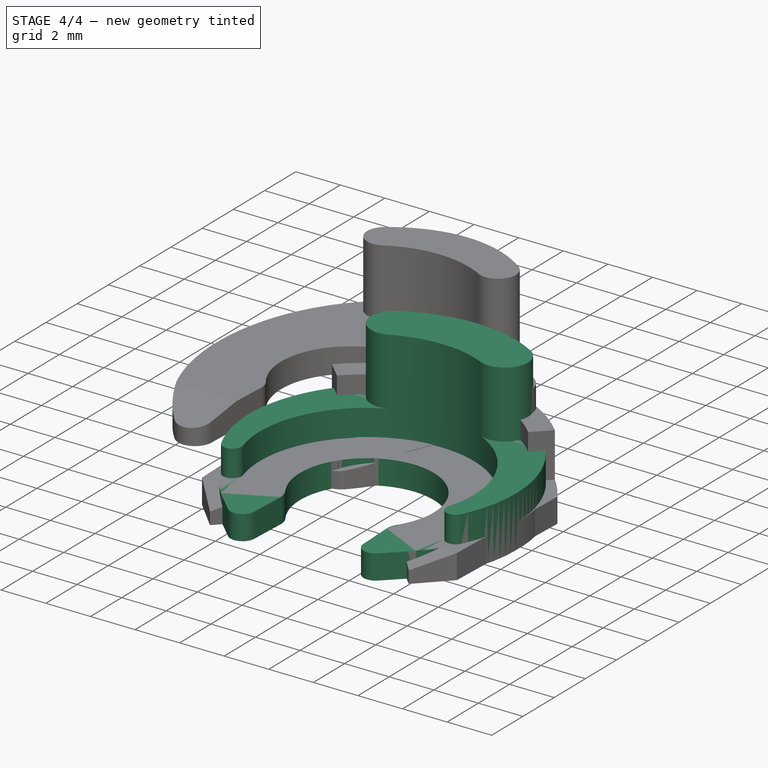
[diagram: stage 4 of 4 — iso view after this stage's code; geometry added in this stage tinted green]
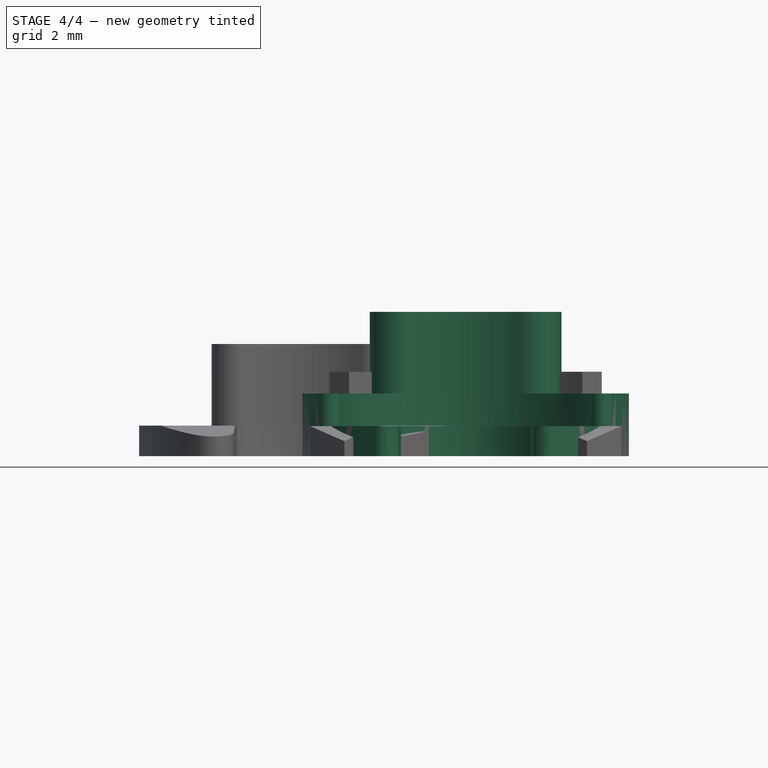
[diagram: stage 4 of 4 — front view after this stage's code; geometry added in this stage tinted green]
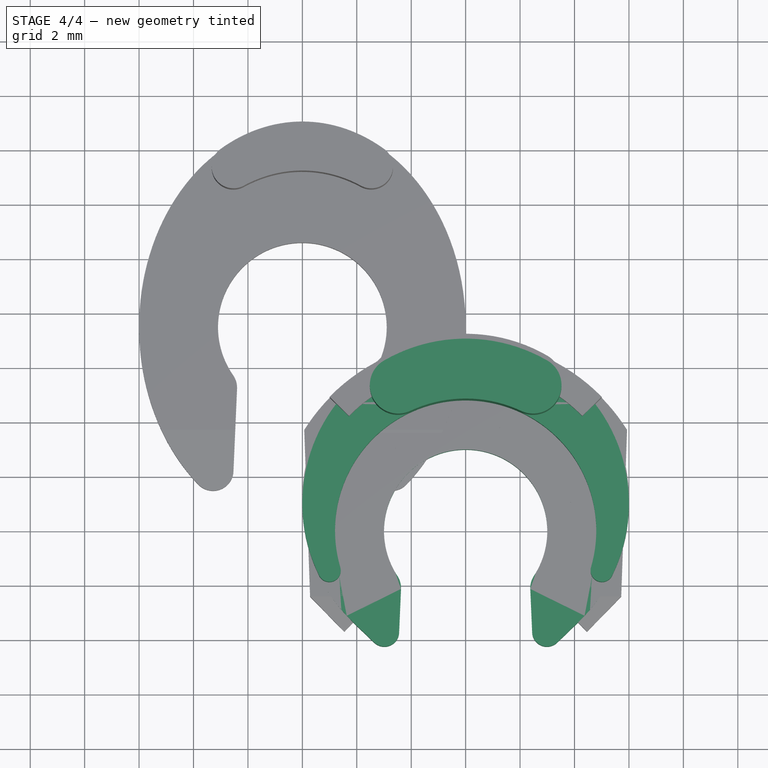
[diagram: stage 4 of 4 — top view after this stage's code; geometry added in this stage tinted green]
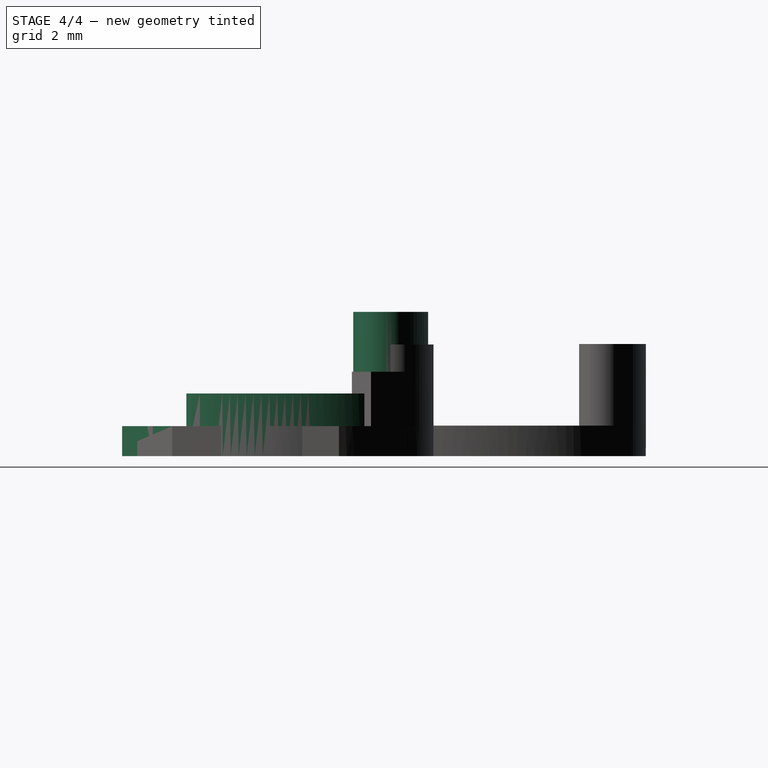
[diagram: stage 4 of 4 — right view after this stage's code; geometry added in this stage tinted green]
FEATURE [Sketcher::SketchObject] Sketch  label="Template"
  FullyConstrained = true
  MapMode = 5
  Support = -> [XY_Plane]
  expr: Constraints[21] = .Constraints.R * 2
  expr: Constraints[55] = .Constraints.R * 2
  sketch-geometry (23):
    g0: ArcOfCircle CenterX=-2.55e-14 CenterY=-8.091e-13 CenterZ=0 NormalX=0 NormalY=0 NormalZ=1 AngleXU=0 Radius=3 StartAngle=5.70111 EndAngle=10.0068
    g1: ArcOfCircle CenterX=-3.17424 CenterY=-2.08907 CenterZ=0 NormalX=0 NormalY=0 NormalZ=1 AngleXU=0 Radius=0.8 StartAngle=6.23955 EndAngle=6.86526
    g2: ArcOfCircle CenterX=3.17424 CenterY=-2.08907 CenterZ=0 NormalX=0 NormalY=0 NormalZ=1 AngleXU=0 Radius=0.8 StartAngle=2.55952 EndAngle=3.18523
    g3: LineSegment StartX=-2.50598 StartY=-1.64927 StartZ=0 EndX=2.50598 EndY=-1.64927 EndZ=0
    g4: LineSegment StartX=-2.375 StartY=-2.12396 StartZ=0 EndX=-2.44486 EndY=-3.72396 EndZ=0
    g5: LineSegment StartX=2.375 StartY=-2.12396 StartZ=0 EndX=2.44486 EndY=-3.72396 EndZ=0
    g6: LineSegment StartX=-2.44486 StartY=-3.72396 StartZ=0 EndX=2.44486 EndY=-3.72396 EndZ=0
    g7: LineSegment StartX=-2.375 StartY=-2.12396 StartZ=0 EndX=2.375 EndY=-2.12396 EndZ=0
    g8: LineSegment StartX=-2.375 StartY=-2.12396 StartZ=0 EndX=-2.53e-14 EndY=-8.091e-13 EndZ=0
    g9: LineSegment StartX=-2.55e-14 StartY=-8.091e-13 StartZ=0 EndX=2.375 EndY=-2.12396 EndZ=0
    g10: ArcOfCircle CenterX=-2.55e-14 CenterY=1 CenterZ=0 NormalX=0 NormalY=0 NormalZ=1 AngleXU=0 Radius=6 StartAngle=5.47843 EndAngle=10.2295
    g11: LineSegment StartX=-2.55e-14 StartY=-8.091e-13 StartZ=0 EndX=-2.55e-14 EndY=1 EndZ=0
    g12: LineSegment StartX=-4.15973 StartY=-3.32396 StartZ=0 EndX=-3.36238 EndY=-4.09103 EndZ=0
    g13: LineSegment StartX=4.15973 StartY=-3.32396 StartZ=0 EndX=3.36238 EndY=-4.09103 EndZ=0
    g14: LineSegment StartX=-4.15973 StartY=-3.32396 StartZ=0 EndX=4.15973 EndY=-3.32396 EndZ=0
    g15: ArcOfCircle CenterX=-2.9865 CenterY=-3.70032 CenterZ=0 NormalX=0 NormalY=0 NormalZ=1 AngleXU=0 Radius=0.542161 StartAngle=3.94635 EndAngle=6.23955
    g16: ArcOfCircle CenterX=2.9865 CenterY=-3.70032 CenterZ=0 NormalX=0 NormalY=0 NormalZ=1 AngleXU=0 Radius=0.542161 StartAngle=3.18523 EndAngle=5.47843
    g17: ArcOfCircle CenterX=-2.55e-14 CenterY=-8.091e-13 CenterZ=0 NormalX=0 NormalY=0 NormalZ=1 AngleXU=0 Radius=4.8 StartAngle=5.99867 EndAngle=9.70929
    g18: ArcOfCircle CenterX=-5.00831 CenterY=-1.46466 CenterZ=0 NormalX=0 NormalY=0 NormalZ=1 AngleXU=0 Radius=0.418087 StartAngle=3.59891 EndAngle=6.5677
    g19: ArcOfCircle CenterX=5.00831 CenterY=-1.46466 CenterZ=0 NormalX=0 NormalY=0 NormalZ=1 AngleXU=0 Radius=0.418087 StartAngle=2.85708 EndAngle=5.82587
    g20: ArcOfCircle CenterX=-2.47814 CenterY=5.29226 CenterZ=0 NormalX=0 NormalY=0 NormalZ=1 AngleXU=0 Radius=1.04373 StartAngle=2.0944 EndAngle=5.15032
    g21: ArcOfCircle CenterX=2.47814 CenterY=5.29226 CenterZ=0 NormalX=0 NormalY=0 NormalZ=1 AngleXU=0 Radius=1.04373 StartAngle=4.27446 EndAngle=7.33038
    g22: LineSegment StartX=-2.03553 StartY=4.34703 StartZ=0 EndX=2.03553 EndY=4.34703 EndZ=0
  constraints (56):
    c: Radius(g0) = 3  'R'
    c: Tangent(g1,g0) = 1.5708
    c: Tangent(g2,g0) = 1.5708
    c: Coincident(g3,g0)
    c: Coincident(g3,g0)
    c: Horizontal(g3)
    c: Equal(g1,g2)
    c: Tangent(g2,g5) = -1.5708
    c: Coincident(g6,g4)
    c: Coincident(g6,g5)
    c: Horizontal(g6)
    c: Coincident(g7,g1)
    c: Coincident(g7,g2)
    c: Horizontal(g7)
    c: Angle(g4,g5) = 0.0872665
    c: Coincident(g8,g1)
    c: Coincident(g8,g0)
    c: Coincident(g9,g0)
    c: Coincident(g9,g2)
    c: DistanceY(g4,g1) = 1.6
    c: DistanceX(g7,g7) = 4.75
    c: Radius(g10) = 6
    c: Coincident(g11,g0)
    c: Coincident(g11,g10)
    c: Vertical(g11)
    c: DistanceY(g11,g11) = 1
    c: Radius(g1) = 0.8
    c: Tangent(g10,g13) = 1.5708
    c: Tangent(g10,g12) = -1.5708
    c: Coincident(g14,g10)
    c: Coincident(g14,g10)
    c: Horizontal(g14)
    c: Equal(g13,g12)
    c: Tangent(g1,g4) = 1.5708
    c: DistanceY(g4,g10) = 0.4
    c: Tangent(g5,g16) = -1.5708
    c: Tangent(g16,g13) = 1.5708
    c: Tangent(g4,g15) = 1.5708
    c: Coincident(g15,g12)
    c: Coincident(g0,g-1)  '__ANCHOR__'
    c: Coincident(g0,g17)
    c: Radius(g17) = 4.8
    c: Tangent(g18,g17) = 1.5708
    c: Tangent(g18,g10) = -1.5708
    c: PointOnObject(g18,g3)
    c: Tangent(g19,g10) = -1.5708
    c: Tangent(g19,g17) = 1.5708
    c: PointOnObject(g19,g3)
    c: Tangent(g20,g17) = 1.5708
    c: Tangent(g20,g10) = -1.5708
    c: Tangent(g21,g10) = -1.5708
    c: Tangent(g21,g17) = 1.5708
    c: Coincident(g22,g20)
    c: Coincident(g22,g21)
    c: Horizontal(g22)
    c: DistanceX(g20,g21) = 6
FEATURE [Sketcher::SketchObject] Sketch001
  ExternalGeometry = -> [Sketch]
  FullyConstrained = true
  MapMode = 5
  Support = -> [XY_Plane]
  sketch-geometry (10):
    g0: ArcOfCircle CenterX=-2.9865 CenterY=-3.70032 CenterZ=0 NormalX=0 NormalY=0 NormalZ=1 AngleXU=0 Radius=0.542161 StartAngle=3.94635 EndAngle=6.23955
    g1: ArcOfCircle CenterX=2.9865 CenterY=-3.70032 CenterZ=0 NormalX=0 NormalY=0 NormalZ=1 AngleXU=0 Radius=0.542161 StartAngle=3.18523 EndAngle=5.47843
    g2: ArcOfCircle CenterX=1.7015e-12 CenterY=1 CenterZ=0 NormalX=0 NormalY=0 NormalZ=1 AngleXU=0 Radius=6 StartAngle=5.47843 EndAngle=10.2295
    g3: ArcOfCircle CenterX=-1.0175e-11 CenterY=1.08339e-11 CenterZ=0 NormalX=0 NormalY=0 NormalZ=1 AngleXU=0 Radius=3 StartAngle=5.70111 EndAngle=10.0068
    g4: ArcOfCircle CenterX=3.17424 CenterY=-2.08907 CenterZ=0 NormalX=0 NormalY=0 NormalZ=1 AngleXU=0 Radius=0.8 StartAngle=2.55952 EndAngle=3.18523
    g5: ArcOfCircle CenterX=-3.17424 CenterY=-2.08907 CenterZ=0 NormalX=0 NormalY=0 NormalZ=1 AngleXU=0 Radius=0.8 StartAngle=6.23955 EndAngle=6.86526
    g6: LineSegment StartX=-2.375 StartY=-2.12396 StartZ=0 EndX=-2.44486 EndY=-3.72396 EndZ=0
    g7: LineSegment StartX=-4.15973 StartY=-3.32396 StartZ=0 EndX=-3.36238 EndY=-4.09103 EndZ=0
    g8: LineSegment StartX=2.375 StartY=-2.12396 StartZ=0 EndX=2.44486 EndY=-3.72396 EndZ=0
    g9: LineSegment StartX=3.36238 StartY=-4.09103 StartZ=0 EndX=4.15973 EndY=-3.32396 EndZ=0
  constraints (26):
    c: Coincident(g0,g-7)
    c: Coincident(g0,g-7)
    c: Coincident(g1,g-6)
    c: Coincident(g1,g-6)
    c: Coincident(g2,g-8)
    c: Coincident(g2,g-8)
    c: Coincident(g3,g-4)
    c: Coincident(g3,g-5)
    c: Coincident(g4,g3)
    c: Coincident(g4,g-5)
    c: Coincident(g5,g3)
    c: Coincident(g5,g-4)
    c: Equal(g-4,g5)
    c: Equal(g-5,g4)
    c: Equal(g3,g-3)
    c: Equal(g1,g-6)
    c: Equal(g-7,g0)
    c: Equal(g2,g-8)
    c: Coincident(g6,g5)
    c: Coincident(g6,g0)
    c: Coincident(g7,g2)
    c: Coincident(g7,g0)
    c: Coincident(g8,g4)
    c: Coincident(g8,g1)
    c: Coincident(g9,g1)
    c: Coincident(g9,g2)
FEATURE [PartDesign::Pad] Pad
  Direction = (0,0,1)
  Length = 1.1
  Length2 = 10
  Profile = -> Sketch001
  ReferenceAxis = -> Sketch001 [N_Axis]
  Type = 0
FEATURE [Sketcher::SketchObject] Sketch002
  AttachmentOffset = pos=(0,0,1.1) rot=(0,0,1;0rad)
  ExternalGeometry = -> [Sketch]
  FullyConstrained = true
  MapMode = 5
  Placement = pos=(0,0,1.1) rot=(0,0,1;0rad)
  Support = -> [XY_Plane]
  expr: .AttachmentOffset.Base.z = <<Sketch001>>.AttachmentOffset.Base.z + <<Pad>>.Length
  sketch-geometry (4):
    g0: ArcOfCircle CenterX=-2.68e-14 CenterY=1 CenterZ=0 NormalX=0 NormalY=0 NormalZ=1 AngleXU=0 Radius=6 StartAngle=5.82587 EndAngle=9.8821
    g1: ArcOfCircle CenterX=-2.6e-14 CenterY=-1.443e-11 CenterZ=0 NormalX=0 NormalY=0 NormalZ=1 AngleXU=0 Radius=4.8 StartAngle=5.99867 EndAngle=9.70929
    g2: ArcOfCircle CenterX=5.00831 CenterY=-1.46466 CenterZ=0 NormalX=0 NormalY=0 NormalZ=1 AngleXU=0 Radius=0.418087 StartAngle=2.85708 EndAngle=5.82587
    g3: ArcOfCircle CenterX=-5.00831 CenterY=-1.46466 CenterZ=0 NormalX=0 NormalY=0 NormalZ=1 AngleXU=0 Radius=0.418087 StartAngle=3.59891 EndAngle=6.5677
  constraints (12):
    c: Coincident(g0,g-3)
    c: Coincident(g0,g-4)
    c: Coincident(g1,g-5)
    c: Coincident(g1,g-5)
    c: Coincident(g2,g1)
    c: Coincident(g2,g0)
    c: Coincident(g3,g0)
    c: Coincident(g3,g1)
    c: Equal(g-3,g3)
    c: Equal(g-4,g2)
    c: Equal(g-6,g0)
    c: Equal(g-5,g1)
FEATURE [PartDesign::Pad] Pad001
  BaseFeature = -> Pad
  Direction = (0,0,1)
  Length = 1.2
  Length2 = 10
  Profile = -> Sketch002
  ReferenceAxis = -> Sketch002 [N_Axis]
  Refine = true
  Type = 0
FEATURE [Sketcher::SketchObject] Sketch003
  AttachmentOffset = pos=(0,0,2.3) rot=(0,0,1;0rad)
  ExternalGeometry = -> [Sketch]
  FullyConstrained = true
  MapMode = 5
  Placement = pos=(0,0,2.3) rot=(0,0,1;0rad)
  Support = -> [XY_Plane]
  expr: .AttachmentOffset.Base.z = <<Sketch002>>.AttachmentOffset.Base.z + <<Pad001>>.Length
  sketch-geometry (4):
    g0: ArcOfCircle CenterX=-2.47814 CenterY=5.29226 CenterZ=0 NormalX=0 NormalY=0 NormalZ=1 AngleXU=0 Radius=1.04373 StartAngle=2.0944 EndAngle=5.15032
    g1: ArcOfCircle CenterX=2.47814 CenterY=5.29226 CenterZ=0 NormalX=0 NormalY=0 NormalZ=1 AngleXU=0 Radius=1.04373 StartAngle=4.27446 EndAngle=7.33038
    g2: ArcOfCircle CenterX=2.324e-13 CenterY=-6.932e-13 CenterZ=0 NormalX=0 NormalY=0 NormalZ=1 AngleXU=0 Radius=4.8 StartAngle=1.13286 EndAngle=2.00873
    g3: ArcOfCircle CenterX=-2.448e-13 CenterY=1 CenterZ=0 NormalX=0 NormalY=0 NormalZ=1 AngleXU=0 Radius=6 StartAngle=1.0472 EndAngle=2.0944
  constraints (12):
    c: Coincident(g0,g-5)
    c: Coincident(g0,g-5)
    c: Coincident(g1,g-6)
    c: Coincident(g1,g-6)
    c: Coincident(g2,g0)
    c: Coincident(g2,g1)
    c: Coincident(g3,g0)
    c: Coincident(g3,g1)
    c: Equal(g-3,g3)
    c: Equal(g-4,g2)
    c: Equal(g-5,g0)
    c: Equal(g-6,g1)
FEATURE [PartDesign::Pad] Pad002
  BaseFeature = -> Pad001
  Direction = (0,0,1)
  Length = 3
  Length2 = 10
  Profile = -> Sketch003
  ReferenceAxis = -> Sketch003 [N_Axis]
  Type = 0
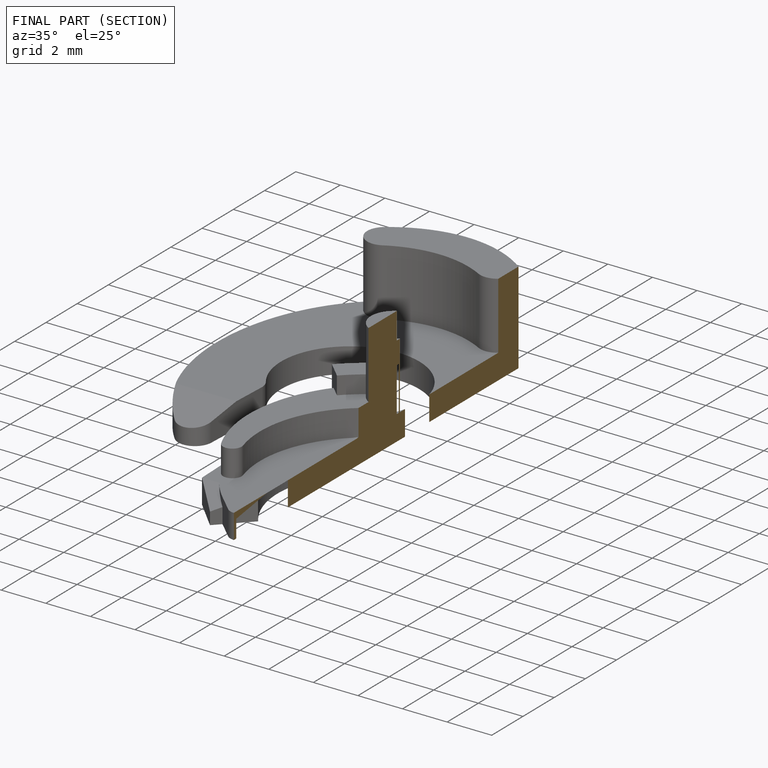
[diagram: finished part — half-section view (interior)]
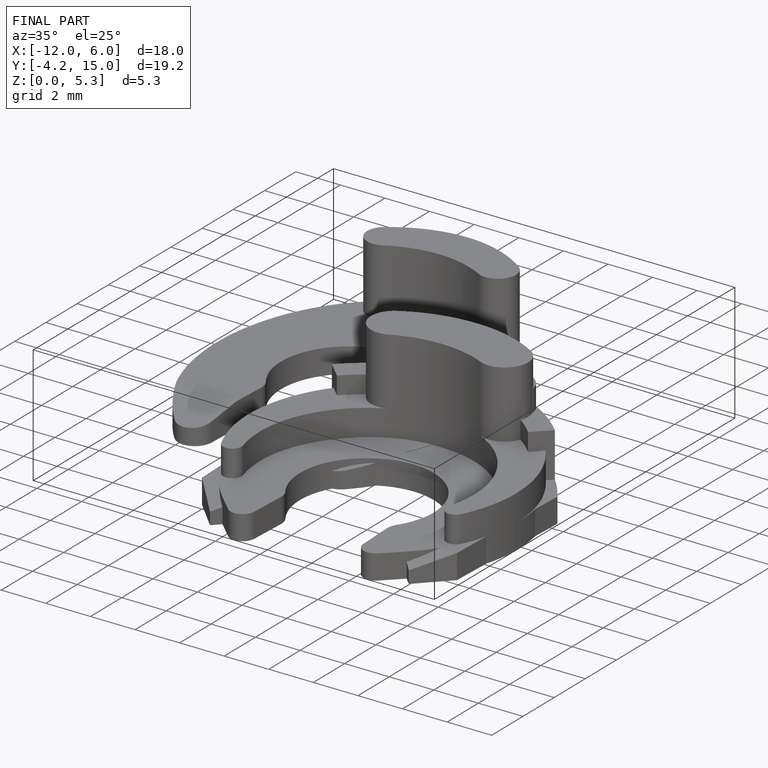
[diagram: finished part — iso view with bounding-box wireframe]
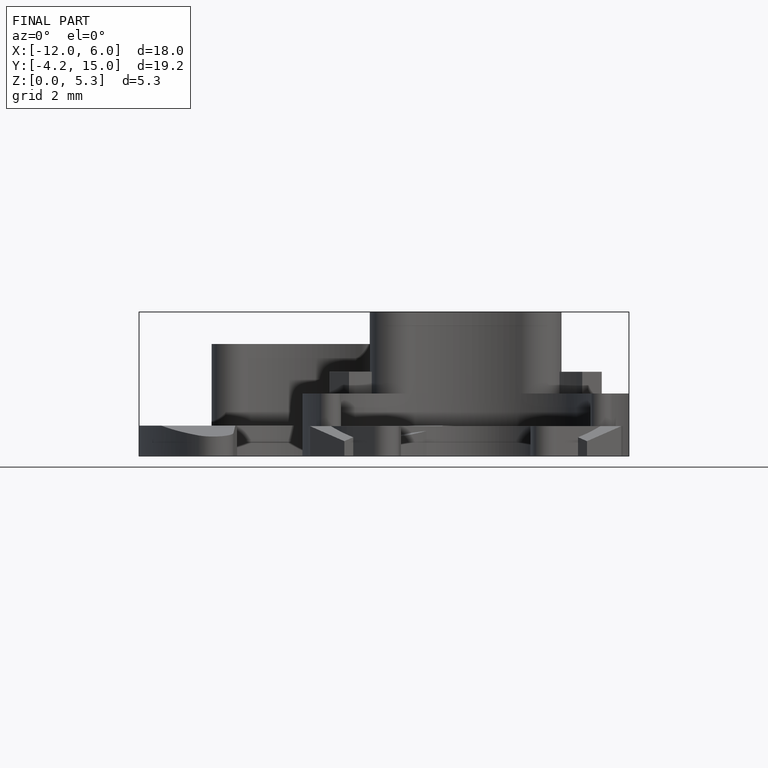
[diagram: finished part — front view with bounding-box wireframe]
